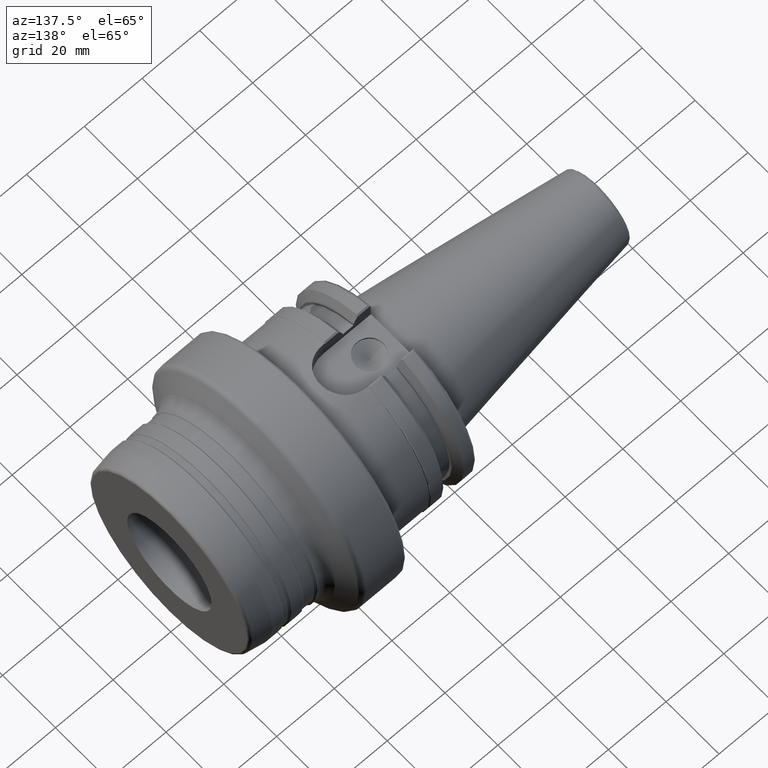
[diagram: clean part render]
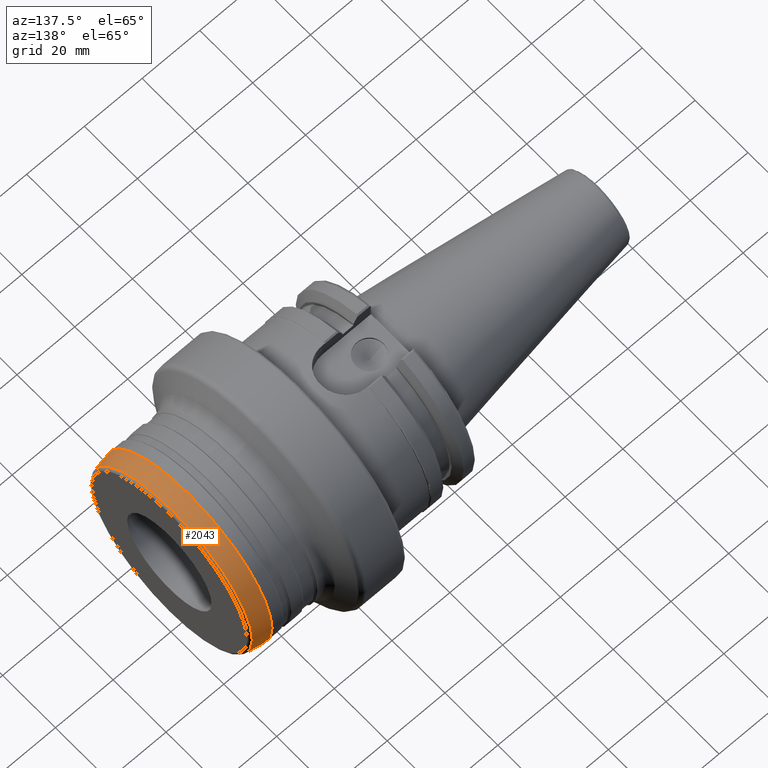
[diagram: same view with one face highlighted and labeled with its STEP entity id]
A machine part, auxiliary view. The second image highlights one B-rep face of the part: STEP entity #2043.
In plain terms, the highlighted conical surface has half-angle 10 deg.
Its self-contained STEP definition (entity closure, byte-faithful):
#128=LINE('',#3498,#217);
#217=VECTOR('',#2592,30.9);
#330=FACE_OUTER_BOUND('',#437,.T.);
#437=EDGE_LOOP('',(#1463,#1464,#1465,#1466,#1467,#1468,#1469,#1470));
#564=CIRCLE('',#2205,30.4457081218349);
#565=CIRCLE('',#2206,30.4457081218349);
#566=CIRCLE('',#2207,30.4457081218349);
#568=CIRCLE('',#2210,31.4848077530122);
#569=CIRCLE('',#2211,31.4848077530122);
#570=CIRCLE('',#2212,31.4848077530122);
#826=VERTEX_POINT('',#3488);
#827=VERTEX_POINT('',#3490);
#828=VERTEX_POINT('',#3492);
#829=VERTEX_POINT('',#3497);
#830=VERTEX_POINT('',#3499);
#831=VERTEX_POINT('',#3501);
#1083=EDGE_CURVE('',#826,#827,#564,.T.);
#1084=EDGE_CURVE('',#827,#828,#565,.T.);
#1085=EDGE_CURVE('',#828,#826,#566,.T.);
#1087=EDGE_CURVE('',#827,#829,#128,.T.);
#1088=EDGE_CURVE('',#830,#829,#568,.T.);
#1089=EDGE_CURVE('',#831,#830,#569,.T.);
#1090=EDGE_CURVE('',#829,#831,#570,.T.);
#1463=ORIENTED_EDGE('',*,*,#1085,.F.);
#1464=ORIENTED_EDGE('',*,*,#1084,.F.);
#1465=ORIENTED_EDGE('',*,*,#1087,.T.);
#1466=ORIENTED_EDGE('',*,*,#1088,.F.);
#1467=ORIENTED_EDGE('',*,*,#1089,.F.);
#1468=ORIENTED_EDGE('',*,*,#1090,.F.);
#1469=ORIENTED_EDGE('',*,*,#1087,.F.);
#1470=ORIENTED_EDGE('',*,*,#1083,.F.);
#2006=CONICAL_SURFACE('',#2209,30.9,0.174532925199433);
#2043=ADVANCED_FACE('',(#330),#2006,.T.);
#2205=AXIS2_PLACEMENT_3D('',#3491,#2582,#2583);
#2206=AXIS2_PLACEMENT_3D('',#3493,#2584,#2585);
#2207=AXIS2_PLACEMENT_3D('',#3494,#2586,#2587);
#2209=AXIS2_PLACEMENT_3D('',#3496,#2590,#2591);
#2210=AXIS2_PLACEMENT_3D('',#3500,#2593,#2594);
#2211=AXIS2_PLACEMENT_3D('',#3502,#2595,#2596);
#2212=AXIS2_PLACEMENT_3D('',#3503,#2597,#2598);
#2582=DIRECTION('center_axis',(1.,0.,0.));
#2583=DIRECTION('ref_axis',(0.,-1.,3.06161699786838E-17));
#2584=DIRECTION('center_axis',(1.,0.,0.));
#2585=DIRECTION('ref_axis',(0.,-1.,3.06161699786838E-17));
#2586=DIRECTION('center_axis',(1.,0.,0.));
#2587=DIRECTION('ref_axis',(0.,-1.,3.06161699786838E-17));
#2590=DIRECTION('center_axis',(-1.,0.,0.));
#2591=DIRECTION('ref_axis',(0.,1.,0.));
#2592=DIRECTION('',(-0.984807753012208,-0.17364817766693,-2.12657684957577E-17));
#2593=DIRECTION('center_axis',(-1.,0.,0.));
#2594=DIRECTION('ref_axis',(0.,-1.,3.06161699786838E-17));
#2595=DIRECTION('center_axis',(-1.,0.,0.));
#2596=DIRECTION('ref_axis',(0.,-1.,3.06161699786838E-17));
#2597=DIRECTION('center_axis',(-1.,0.,0.));
#2598=DIRECTION('ref_axis',(0.,-1.,3.06161699786838E-17));
#3488=CARTESIAN_POINT('',(79.6736481776669,-3.72852389991797E-15,30.4457081218349));
#3490=CARTESIAN_POINT('',(79.6736481776669,-30.4457081218349,-3.72852389991797E-15));
#3491=CARTESIAN_POINT('Origin',(79.6736481776669,0.,-4.66065487489747E-15));
#3492=CARTESIAN_POINT('',(79.6736481776669,30.4457081218349,-1.86426194995899E-15));
#3493=CARTESIAN_POINT('Origin',(79.6736481776669,0.,-4.66065487489747E-15));
#3494=CARTESIAN_POINT('Origin',(79.6736481776669,0.,-4.66065487489747E-15));
#3496=CARTESIAN_POINT('Origin',(77.0972309082294,0.,0.));
#3497=CARTESIAN_POINT('',(73.7806213305998,-31.4848077530122,-3.85577690364962E-15));
#3498=CARTESIAN_POINT('',(77.0972309082294,-30.9,-3.78415860936532E-15));
#3499=CARTESIAN_POINT('',(73.7806213305998,31.4848077530122,-9.63944225912404E-15));
#3500=CARTESIAN_POINT('Origin',(73.7806213305998,0.,-4.81972112956202E-15));
#3501=CARTESIAN_POINT('',(73.7806213305998,-3.85577690364962E-15,31.4848077530122));
#3502=CARTESIAN_POINT('Origin',(73.7806213305998,0.,-4.81972112956202E-15));
#3503=CARTESIAN_POINT('Origin',(73.7806213305998,0.,-4.81972112956202E-15));